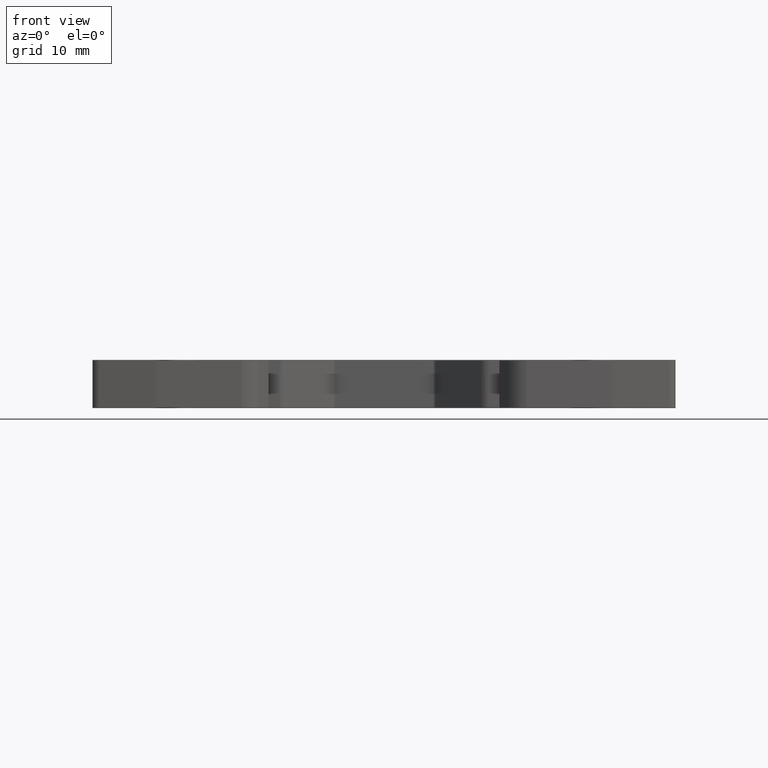
[diagram: clean part render]
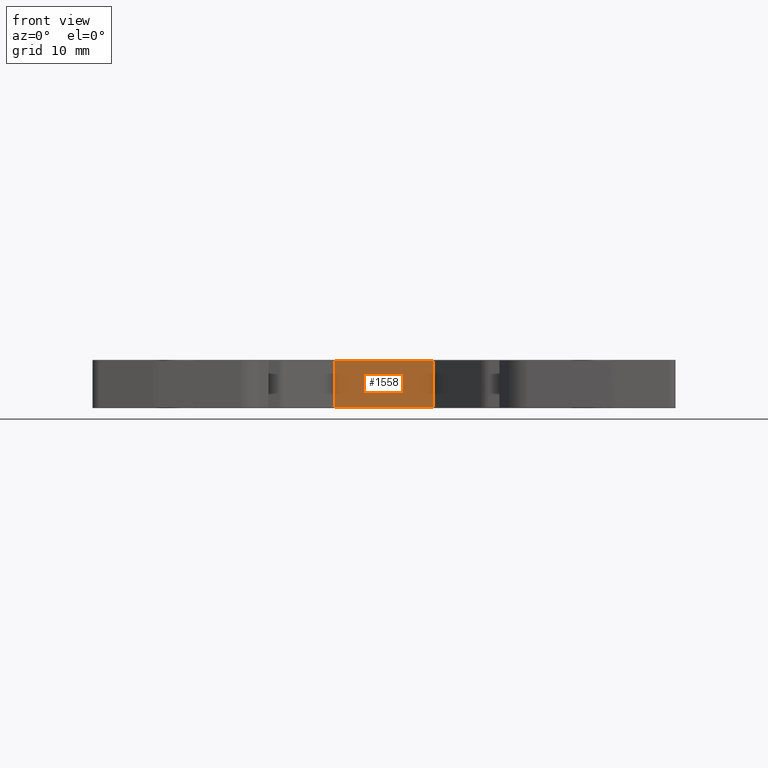
[diagram: same view with one face highlighted and labeled with its STEP entity id]
A machine part, front view. The second image highlights one B-rep face of the part: STEP entity #1558.
In plain terms, the highlighted planar face has unit normal (0, 1, 0).
Its self-contained STEP definition (entity closure, byte-faithful):
#1558 = ADVANCED_FACE ( 'NONE', ( #5785 ), #5753, .F. ) ;
#2218 = EDGE_LOOP ( 'NONE', ( #4381, #4385, #4400, #4412 ) ) ;
#4062 = EDGE_CURVE ( 'NONE', #22642, #22707, #11497, .T. ) ;
#4093 = EDGE_CURVE ( 'NONE', #22667, #22691, #9941, .T. ) ;
#4381 = ORIENTED_EDGE ( 'NONE', *, *, #4093, .F. ) ;
#4385 = ORIENTED_EDGE ( 'NONE', *, *, #27115, .F. ) ;
#4400 = ORIENTED_EDGE ( 'NONE', *, *, #4062, .T. ) ;
#4412 = ORIENTED_EDGE ( 'NONE', *, *, #27030, .F. ) ;
#5753 = PLANE ( 'NONE',  #10241 ) ;
#5759 = DIRECTION ( 'NONE',  ( 0.0000000000000000000, -0.0000000000000000000, 1.000000000000000000 ) ) ;
#5781 = DIRECTION ( 'NONE',  ( 0.0000000000000000000, 1.000000000000000000, 0.0000000000000000000 ) ) ;
#5785 = FACE_OUTER_BOUND ( 'NONE', #2218, .T. ) ;
#5789 = CARTESIAN_POINT ( 'NONE',  ( 493.0806670241209400, -344.5949917276121300, -54.50000000000000000 ) ) ;
#8504 = CARTESIAN_POINT ( 'NONE',  ( 479.4589839682539600, -344.5949917276121300, -54.50000000000000000 ) ) ;
#8506 = DIRECTION ( 'NONE',  ( 0.0000000000000000000, -0.0000000000000000000, 1.000000000000000000 ) ) ;
#8536 = LINE ( 'NONE', #8504, #9986 ) ;
#8899 = LINE ( 'NONE', #8908, #9974 ) ;
#8906 = DIRECTION ( 'NONE',  ( -0.0000000000000000000, 0.0000000000000000000, -1.000000000000000000 ) ) ;
#8908 = CARTESIAN_POINT ( 'NONE',  ( 493.0806670241209400, -344.5949917276121300, -54.50000000000000000 ) ) ;
#9437 = VECTOR ( 'NONE', #11598, 1000.000000000000000 ) ;
#9555 = VECTOR ( 'NONE', #9988, 1000.000000000000000 ) ;
#9941 = LINE ( 'NONE', #9944, #9555 ) ;
#9944 = CARTESIAN_POINT ( 'NONE',  ( 510.7578147152260600, -344.5949917276121300, -53.75000000000000000 ) ) ;
#9974 = VECTOR ( 'NONE', #8906, 1000.000000000000000 ) ;
#9986 = VECTOR ( 'NONE', #8506, 1000.000000000000000 ) ;
#9988 = DIRECTION ( 'NONE',  ( 1.000000000000000000, 0.0000000000000000000, -0.0000000000000000000 ) ) ;
#10241 = AXIS2_PLACEMENT_3D ( 'NONE', #5789, #5781, #5759 ) ;
#11497 = LINE ( 'NONE', #11591, #9437 ) ;
#11591 = CARTESIAN_POINT ( 'NONE',  ( 493.0806670241209400, -344.5949917276121300, -60.25000000000000000 ) ) ;
#11598 = DIRECTION ( 'NONE',  ( 1.000000000000000000, 0.0000000000000000000, -0.0000000000000000000 ) ) ;
#11905 = CARTESIAN_POINT ( 'NONE',  ( 479.4589839682539600, -344.5949917276121300, -53.75000000000000000 ) ) ;
#11932 = CARTESIAN_POINT ( 'NONE',  ( 493.0806670241209400, -344.5949917276121300, -53.75000000000000000 ) ) ;
#11962 = CARTESIAN_POINT ( 'NONE',  ( 479.4589839682539600, -344.5949917276121300, -60.25000000000000700 ) ) ;
#12055 = CARTESIAN_POINT ( 'NONE',  ( 493.0806670241209400, -344.5949917276121300, -60.25000000000000700 ) ) ;
#22642 = VERTEX_POINT ( 'NONE', #11962 ) ;
#22667 = VERTEX_POINT ( 'NONE', #11905 ) ;
#22691 = VERTEX_POINT ( 'NONE', #11932 ) ;
#22707 = VERTEX_POINT ( 'NONE', #12055 ) ;
#27030 = EDGE_CURVE ( 'NONE', #22691, #22707, #8899, .T. ) ;
#27115 = EDGE_CURVE ( 'NONE', #22642, #22667, #8536, .T. ) ;